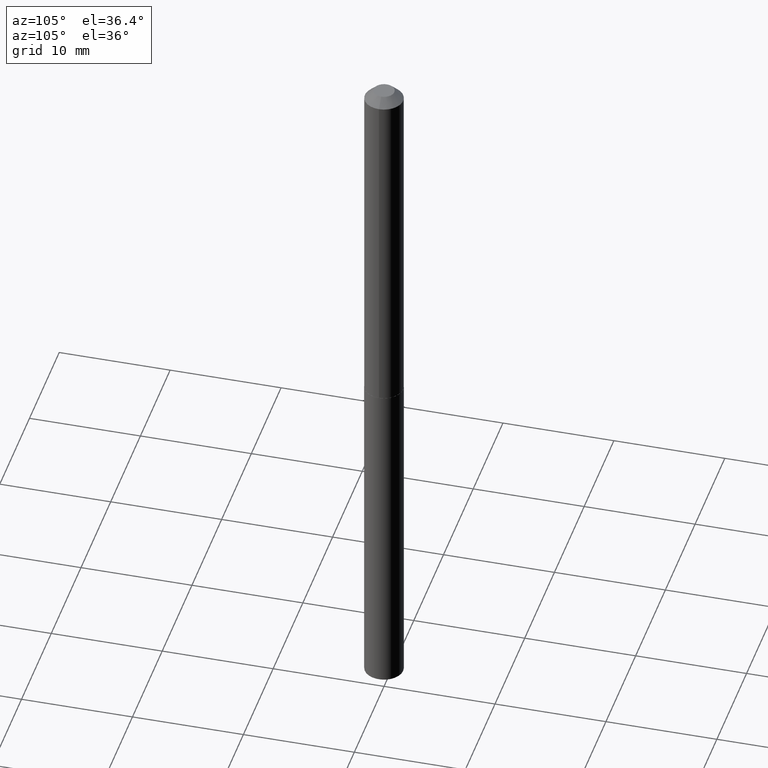
[diagram: clean part render]
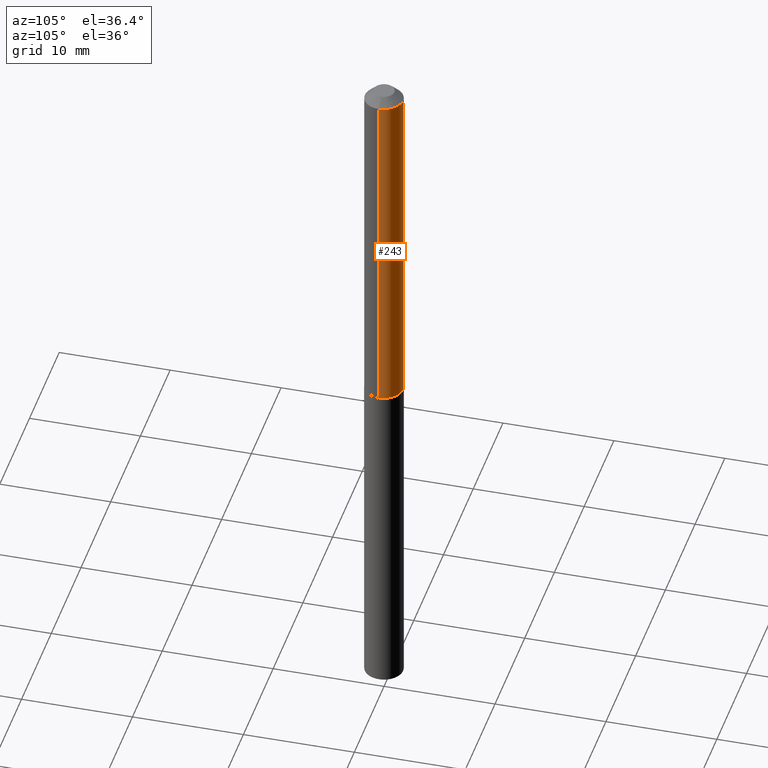
[diagram: same view with one face highlighted and labeled with its STEP entity id]
A machine part, auxiliary view. The second image highlights one B-rep face of the part: STEP entity #243.
In plain terms, the highlighted cylindrical surface (edge-blend (fillet) strip) has radius 1.7272 mm, axis along (-0, 0, 1).
Its self-contained STEP definition (entity closure, byte-faithful):
#6 = EDGE_LOOP ( 'NONE', ( #37, #182, #9, #10 ) ) ;
#9 = ORIENTED_EDGE ( 'NONE', *, *, #104, .F. ) ;
#10 = ORIENTED_EDGE ( 'NONE', *, *, #121, .F. ) ;
#12 = VERTEX_POINT ( 'NONE', #210 ) ;
#31 = VECTOR ( 'NONE', #143, 39.37007874015748143 ) ;
#37 = ORIENTED_EDGE ( 'NONE', *, *, #384, .T. ) ;
#46 = FACE_OUTER_BOUND ( 'NONE', #6, .T. ) ;
#61 = VERTEX_POINT ( 'NONE', #385 ) ;
#74 = CARTESIAN_POINT ( 'NONE',  ( -0.06800000000000000488, -1.771891449408448018E-15, -0.03125000000000020817 ) ) ;
#77 = CIRCLE ( 'NONE', #253, 0.06800000000000000488 ) ;
#82 = LINE ( 'NONE', #87, #31 ) ;
#87 = CARTESIAN_POINT ( 'NONE',  ( 0.06800000000000008815, -4.748414620826667201E-16, 3.315800207541240207E-30 ) ) ;
#92 = DIRECTION ( 'NONE',  ( -2.445468806185136597E-29, 3.491481338843145583E-15, 1.000000000000000000 ) ) ;
#104 = EDGE_CURVE ( 'NONE', #61, #283, #77, .T. ) ;
#121 = EDGE_CURVE ( 'NONE', #12, #61, #82, .T. ) ;
#130 = CARTESIAN_POINT ( 'NONE',  ( -0.06800000000000015754, -3.917843167294917857E-15, -1.260500000000000398 ) ) ;
#131 = LINE ( 'NONE', #164, #246 ) ;
#134 = DIRECTION ( 'NONE',  ( 1.000000000000000000, -6.982962677686258822E-15, 0.000000000000000000 ) ) ;
#143 = DIRECTION ( 'NONE',  ( -2.445468806185136877E-29, 3.491481338843145188E-15, 1.000000000000000000 ) ) ;
#164 = CARTESIAN_POINT ( 'NONE',  ( -0.06800000000000008815, 4.831690603168687527E-16, -3.344875861373340259E-30 ) ) ;
#182 = ORIENTED_EDGE ( 'NONE', *, *, #307, .T. ) ;
#183 = CIRCLE ( 'NONE', #374, 0.06800000000000015754 ) ;
#191 = CYLINDRICAL_SURFACE ( 'NONE', #333, 0.06800000000000008815 ) ;
#210 = CARTESIAN_POINT ( 'NONE',  ( 0.06800000000000015754, -4.875853689694453527E-15, -1.260500000000000398 ) ) ;
#223 = DIRECTION ( 'NONE',  ( 1.000000000000000000, -6.982962677686265922E-15, 4.876176775795935232E-29 ) ) ;
#225 = DIRECTION ( 'NONE',  ( -2.445468806185136597E-29, 3.491481338843145583E-15, 1.000000000000000000 ) ) ;
#231 = CARTESIAN_POINT ( 'NONE',  ( 7.642090019328602662E-31, -1.091087918388490267E-16, -0.03125000000000020817 ) ) ;
#243 = ADVANCED_FACE ( 'NONE', ( #46 ), #191, .T. ) ;
#246 = VECTOR ( 'NONE', #319, 39.37007874015748143 ) ;
#253 = AXIS2_PLACEMENT_3D ( 'NONE', #231, #92, #357 ) ;
#283 = VERTEX_POINT ( 'NONE', #74 ) ;
#284 = DIRECTION ( 'NONE',  ( -2.445468806185136597E-29, 3.491481338843145583E-15, 1.000000000000000000 ) ) ;
#307 = EDGE_CURVE ( 'NONE', #340, #283, #131, .T. ) ;
#319 = DIRECTION ( 'NONE',  ( -2.445468806185136877E-29, 3.491481338843145188E-15, 1.000000000000000000 ) ) ;
#333 = AXIS2_PLACEMENT_3D ( 'NONE', #382, #284, #223 ) ;
#340 = VERTEX_POINT ( 'NONE', #130 ) ;
#357 = DIRECTION ( 'NONE',  ( 1.000000000000000000, -6.982962677686267499E-15, 0.000000000000000000 ) ) ;
#374 = AXIS2_PLACEMENT_3D ( 'NONE', #379, #225, #134 ) ;
#379 = CARTESIAN_POINT ( 'NONE',  ( 3.082513430196365653E-29, -4.401012227611786413E-15, -1.260500000000000398 ) ) ;
#382 = CARTESIAN_POINT ( 'NONE',  ( 0.000000000000000000, 0.000000000000000000, 0.000000000000000000 ) ) ;
#384 = EDGE_CURVE ( 'NONE', #12, #340, #183, .T. ) ;
#385 = CARTESIAN_POINT ( 'NONE',  ( 0.06800000000000000488, -5.839502539215152291E-16, -0.03125000000000020817 ) ) ;